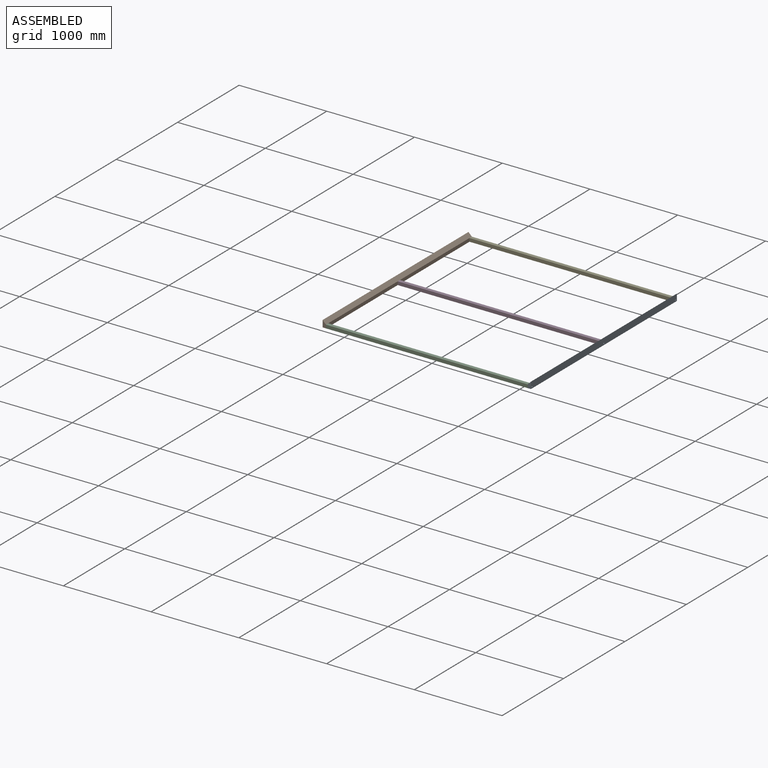
[diagram: assembled view]
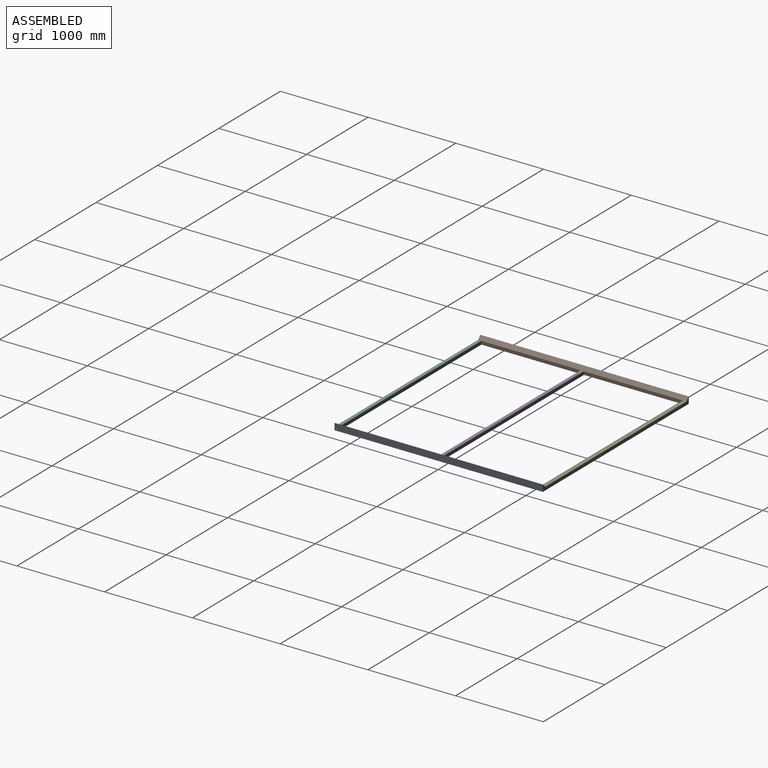
[diagram: assembled view, second angle]
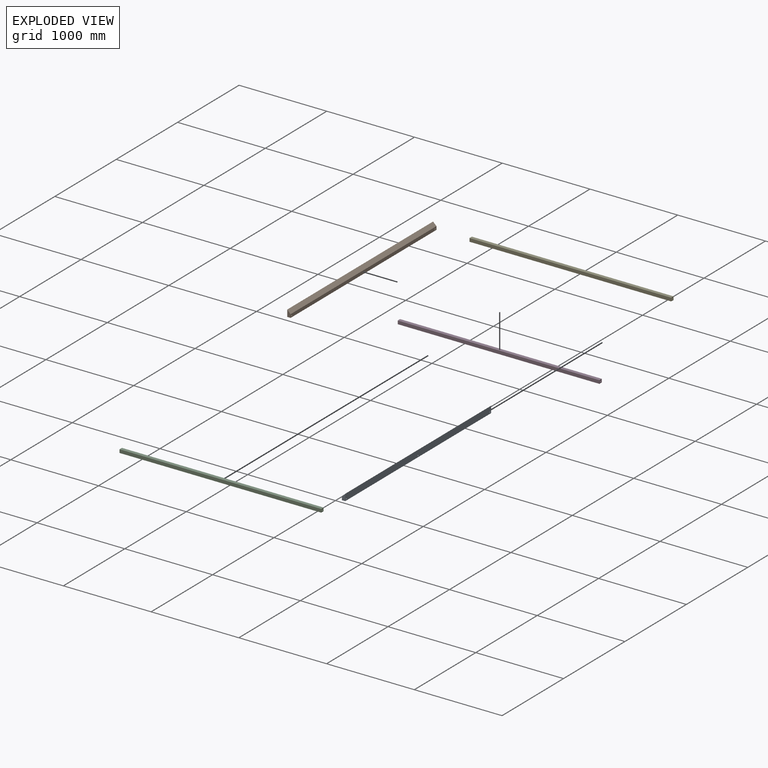
[diagram: exploded view]
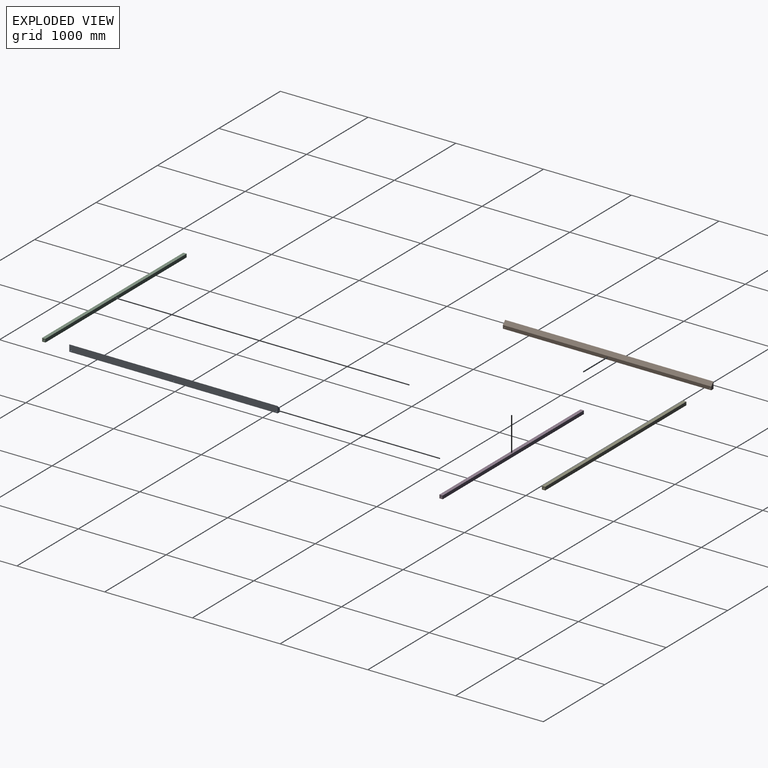
[diagram: exploded view, second angle]
ASSEMBLY  parts=5 mates=4
PART A: 9 faces, bbox 38.1x2374.9x76.2 mm
  f0: plane 76.2x38.1mm, normal (0,-1,0), area 2177.4mm2, adj f1,f3,f4,f5
  f1: plane 2374.9x38.1mm, normal (1,0,0), area 89889.9mm2, adj f0,f2,f3,f4,f6,f7,f8
  f2: plane 76.2x38.1mm, normal (0,1,0), area 2177.4mm2, adj f1,f3,f4,f5
  f3: plane 2374.9x38.1mm, normal (0.71,0,0.71), area 127963.3mm2, adj f0,f1,f2,f5
  f4: plane 2374.9x38.1mm, normal (0,0,-1), area 90483.7mm2, adj f0,f1,f2,f5
  f5: plane 2374.9x76.2mm, normal (-1,0,0), area 180373.6mm2, adj f0,f2,f3,f4,f6,f7,f8
  f6: cylinder r=7.94mm len=38.1mm, axis (1,0,0), area 1900.2mm2, adj f1,f5
  f7: cylinder r=7.94mm len=38.1mm, axis (1,0,0), area 1900.2mm2, adj f1,f5
  f8: cylinder r=7.94mm len=38.1mm, axis (1,0,0), area 1900.2mm2, adj f1,f5
PART B: same geometry as A
PART C: 10 faces, bbox 2298.7x38.1x38.1 mm
  f0: plane 38.1x38.1mm, normal (1,0,0), area 1253.7mm2, adj f1,f2,f3,f4,f8
  f1: plane 2298.7x38.1mm, normal (0,0,1), area 87580.5mm2, adj f0,f2,f4,f5
  f2: plane 2298.7x38.1mm, normal (0,-1,0), area 87580.5mm2, adj f0,f1,f3,f5
  f3: plane 2298.7x38.1mm, normal (0,0,-1), area 87580.5mm2, adj f0,f2,f4,f5
  f4: plane 2298.7x38.1mm, normal (0,1,0), area 87580.5mm2, adj f0,f1,f3,f5
  f5: plane 38.1x38.1mm, normal (-1,0,0), area 1253.7mm2, adj f1,f2,f3,f4,f6
  f6: cylinder r=7.94mm len=50.8mm, axis (-1,0,0), area 2533.5mm2, adj f5,f7
  f7: plane 15.88x15.88mm, normal (-1,0,0), area 197.9mm2, adj f6
  f8: cylinder r=7.94mm len=50.8mm, axis (1,0,0), area 2533.5mm2, adj f0,f9
  f9: plane 15.88x15.88mm, normal (1,0,0), area 197.9mm2, adj f8
PART D: same geometry as C
PART E: same geometry as C
PLACE A rot(axis=(0,0,1),180deg) t=(2672.54,-2763.83,0)mm
PLACE B t=(234.14,-325.43,0)mm
PLACE C rot(axis=(0,0,-1),0deg) t=(234.14,-2662.23,0)mm
PLACE D t=(234.14,-1493.83,0)mm
PLACE E t=(234.14,-325.43,0)mm
MATE fastened C.f2 <-> A.f2  axis (0,-1,0) through (2602.69,-2732.08,2077.72)mm
MATE fastened B.f0 <-> C.f2  axis (0,-1,0) through (303.99,-2732.08,2077.72)mm
MATE fastened B.f2 <-> E.f4  axis (0,1,0) through (303.99,-357.18,2077.72)mm
MATE fastened B.f4 <-> D.f3  axis (0,0,-1) through (303.99,-1544.63,2058.67)mm
